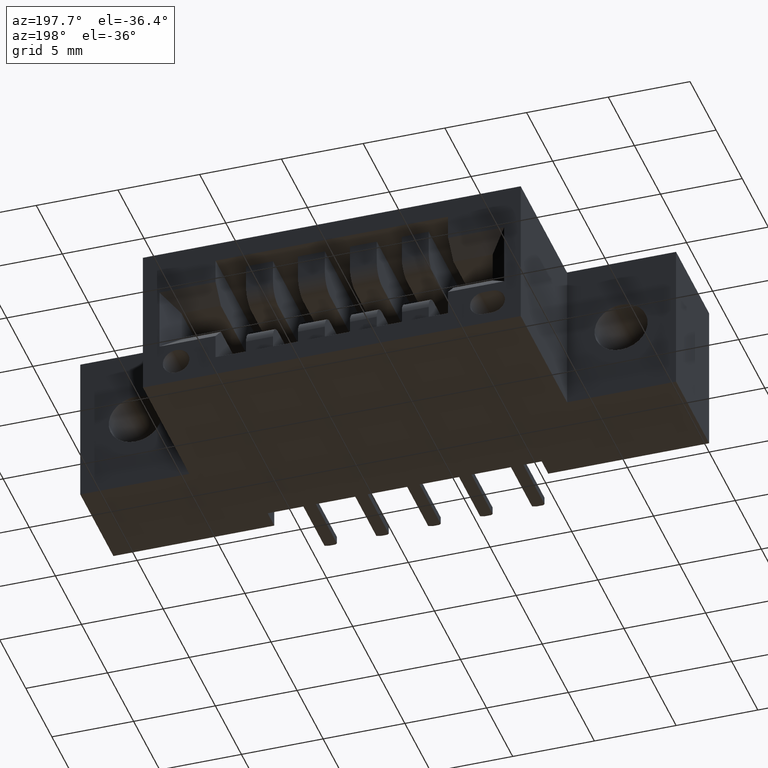
[diagram: clean part render]
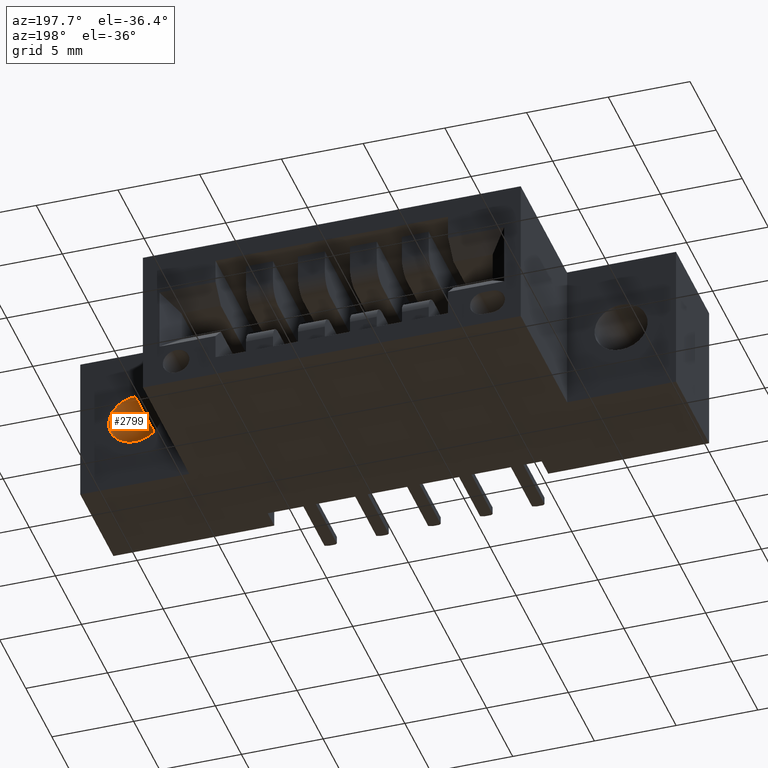
[diagram: same view with one face highlighted and labeled with its STEP entity id]
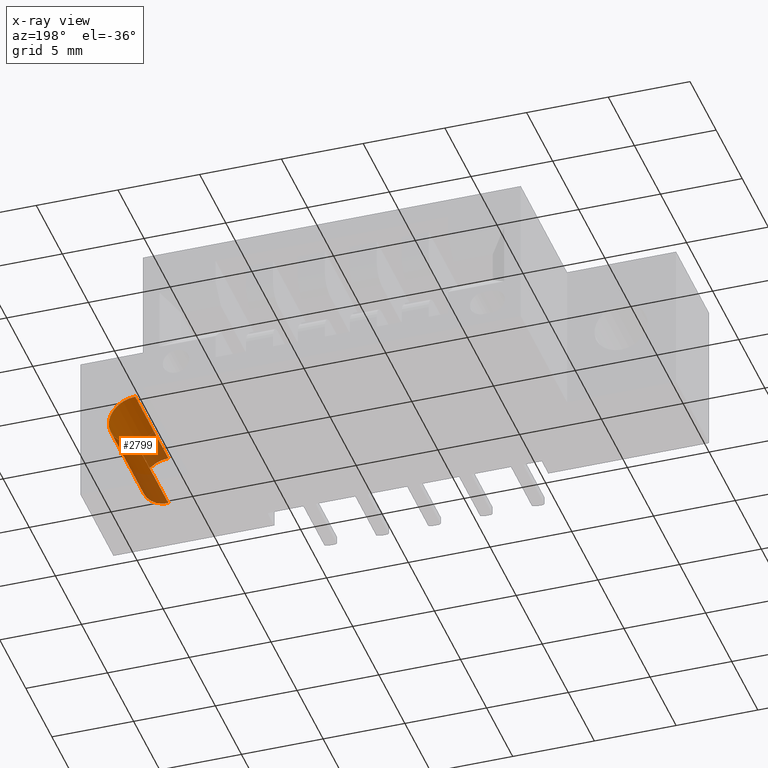
[diagram: x-ray of the same camera — body ghosted, the highlighted face saturated]
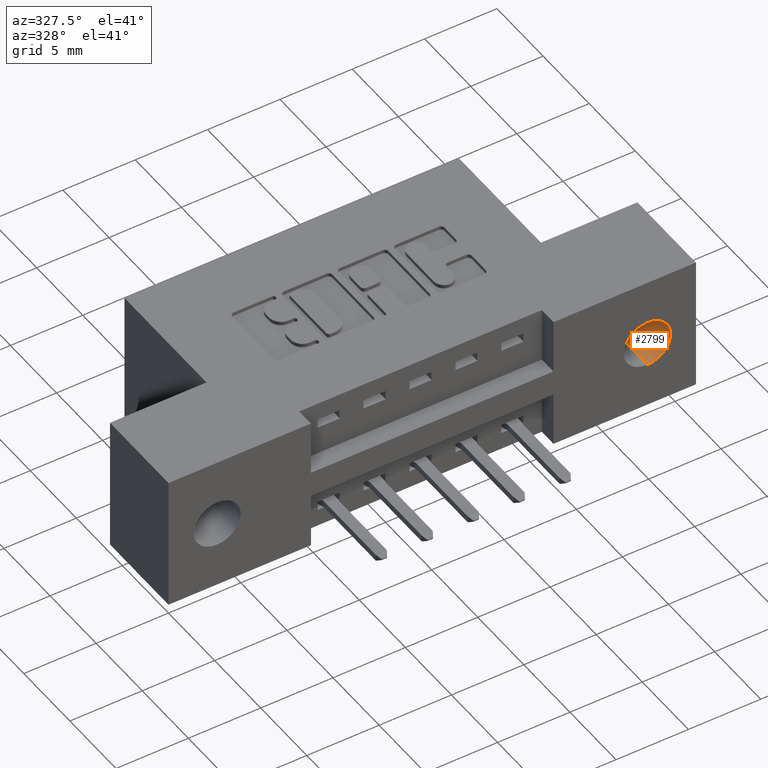
[diagram: same view with one face highlighted and labeled with its STEP entity id]
A machine part, auxiliary view. The second image highlights one B-rep face of the part: STEP entity #2799.
The next image is the same camera in x-ray: the body ghosted, the highlighted face saturated — about 37% of this face is hidden behind the body in this view.
A second angle (auxiliary view) of the same face is appended — the face is thin or edge-on in the first view.
In plain terms, the highlighted cylindrical surface (edge-blend (fillet) strip) has radius 1.6256 mm, axis along (0, 1, 0).
Its self-contained STEP definition (entity closure, byte-faithful):
#35 = LINE ( 'NONE', #643, #8119 ) ;
#591 = CARTESIAN_POINT ( 'NONE',  ( 1.302500000000000657, 0.0000000000000000000, -0.1210000000000001352 ) ) ;
#643 = CARTESIAN_POINT ( 'NONE',  ( 1.302500000000000657, 0.0000000000000000000, -0.2489999999999998603 ) ) ;
#680 = VERTEX_POINT ( 'NONE', #1410 ) ;
#705 = DIRECTION ( 'NONE',  ( 0.0000000000000000000, 1.000000000000000000, -0.0000000000000000000 ) ) ;
#819 = CARTESIAN_POINT ( 'NONE',  ( 1.302500000000000657, 0.0000000000000000000, -0.1849999999999999978 ) ) ;
#821 = CYLINDRICAL_SURFACE ( 'NONE', #2256, 0.06399999999999984868 ) ;
#930 = DIRECTION ( 'NONE',  ( 0.0000000000000000000, 0.0000000000000000000, -1.000000000000000000 ) ) ;
#1293 = ORIENTED_EDGE ( 'NONE', *, *, #2992, .T. ) ;
#1410 = CARTESIAN_POINT ( 'NONE',  ( 1.302500000000000657, 0.2500000000000000000, -0.2489999999999998603 ) ) ;
#1513 = EDGE_CURVE ( 'NONE', #7038, #4795, #8123, .T. ) ;
#1982 = LINE ( 'NONE', #3962, #5793 ) ;
#1998 = ORIENTED_EDGE ( 'NONE', *, *, #1513, .F. ) ;
#2256 = AXIS2_PLACEMENT_3D ( 'NONE', #3497, #5384, #4708 ) ;
#2799 = ADVANCED_FACE ( 'NONE', ( #5335 ), #821, .F. ) ;
#2992 = EDGE_CURVE ( 'NONE', #5954, #680, #4382, .T. ) ;
#3296 = DIRECTION ( 'NONE',  ( 0.0000000000000000000, 0.0000000000000000000, -1.000000000000000000 ) ) ;
#3325 = AXIS2_PLACEMENT_3D ( 'NONE', #5092, #705, #3296 ) ;
#3374 = DIRECTION ( 'NONE',  ( 0.0000000000000000000, 1.000000000000000000, -0.0000000000000000000 ) ) ;
#3393 = CARTESIAN_POINT ( 'NONE',  ( 1.302500000000000657, 0.0000000000000000000, -0.2489999999999998603 ) ) ;
#3497 = CARTESIAN_POINT ( 'NONE',  ( 1.302500000000000657, 0.0000000000000000000, -0.1849999999999999978 ) ) ;
#3918 = DIRECTION ( 'NONE',  ( -0.0000000000000000000, 1.000000000000000000, -0.0000000000000000000 ) ) ;
#3929 = EDGE_CURVE ( 'NONE', #7038, #5954, #1982, .T. ) ;
#3962 = CARTESIAN_POINT ( 'NONE',  ( 1.302500000000000657, 0.0000000000000000000, -0.1210000000000001630 ) ) ;
#4097 = EDGE_LOOP ( 'NONE', ( #6226, #1998, #6174, #1293 ) ) ;
#4382 = CIRCLE ( 'NONE', #3325, 0.06399999999999984868 ) ;
#4708 = DIRECTION ( 'NONE',  ( 0.0000000000000000000, 0.0000000000000000000, 1.000000000000000000 ) ) ;
#4795 = VERTEX_POINT ( 'NONE', #3393 ) ;
#5092 = CARTESIAN_POINT ( 'NONE',  ( 1.302500000000000657, 0.2500000000000000000, -0.1849999999999999978 ) ) ;
#5335 = FACE_OUTER_BOUND ( 'NONE', #4097, .T. ) ;
#5384 = DIRECTION ( 'NONE',  ( -0.0000000000000000000, 1.000000000000000000, -0.0000000000000000000 ) ) ;
#5497 = AXIS2_PLACEMENT_3D ( 'NONE', #819, #3374, #930 ) ;
#5793 = VECTOR ( 'NONE', #6983, 39.37007874015748143 ) ;
#5954 = VERTEX_POINT ( 'NONE', #7943 ) ;
#6174 = ORIENTED_EDGE ( 'NONE', *, *, #3929, .T. ) ;
#6226 = ORIENTED_EDGE ( 'NONE', *, *, #7717, .F. ) ;
#6983 = DIRECTION ( 'NONE',  ( -0.0000000000000000000, 1.000000000000000000, -0.0000000000000000000 ) ) ;
#7038 = VERTEX_POINT ( 'NONE', #591 ) ;
#7717 = EDGE_CURVE ( 'NONE', #4795, #680, #35, .T. ) ;
#7943 = CARTESIAN_POINT ( 'NONE',  ( 1.302500000000000657, 0.2500000000000000000, -0.1210000000000001352 ) ) ;
#8119 = VECTOR ( 'NONE', #3918, 39.37007874015748143 ) ;
#8123 = CIRCLE ( 'NONE', #5497, 0.06399999999999984868 ) ;